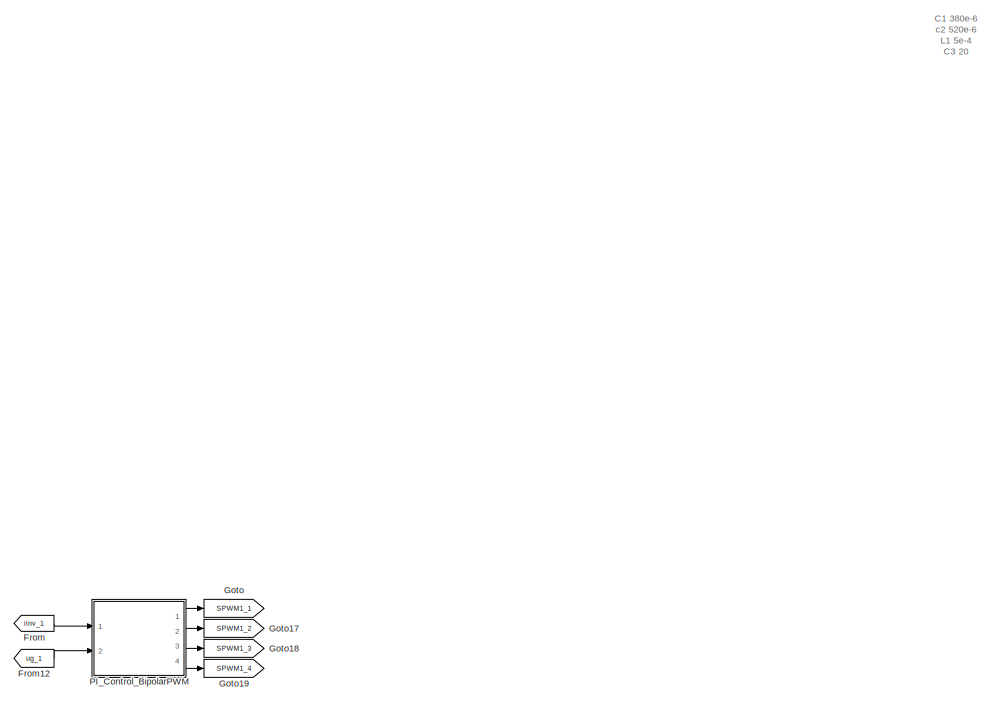
[diagram: root canvas - part 1/4, top right region]
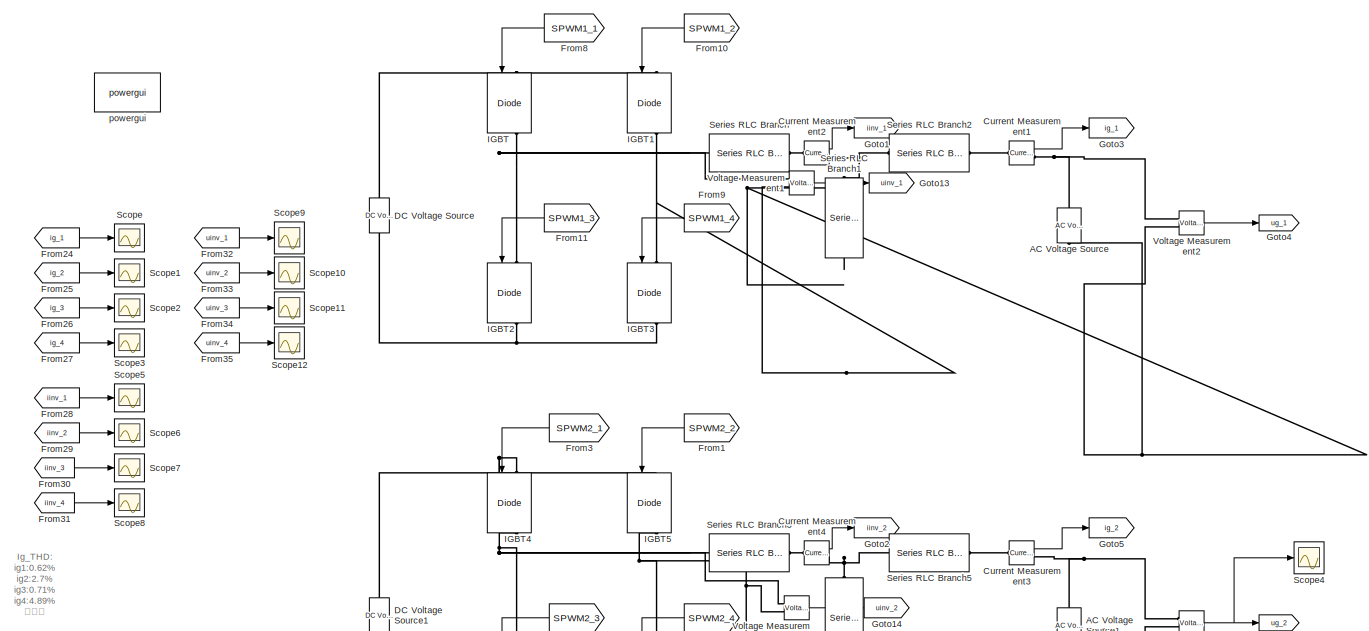
[diagram: root canvas - part 2/4, middle left region]
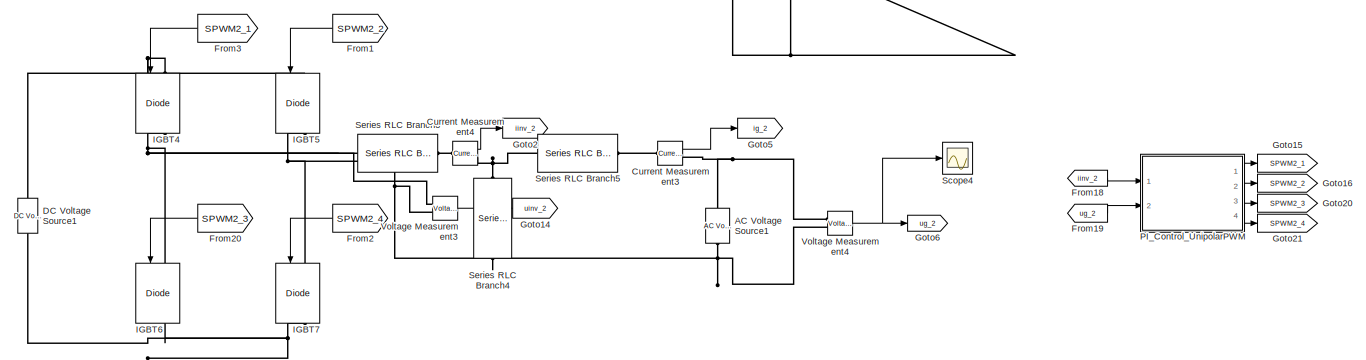
[diagram: root canvas - part 3/4, central region]
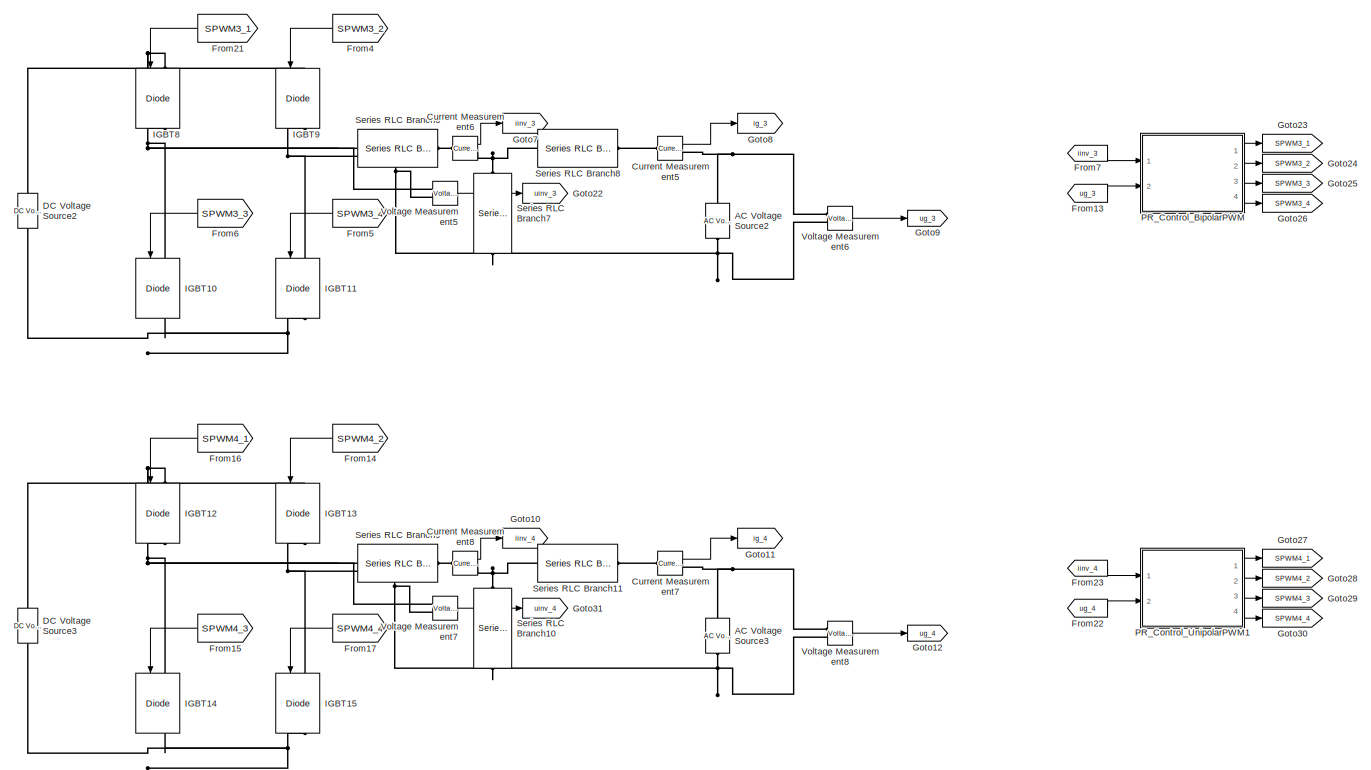
[diagram: root canvas - part 4/4, bottom center region]
MODEL slx_4f4488f0aff0
KIND model
CONFIG AbsTol = auto
CONFIG EnableMultiTasking = off
CONFIG FixedStep = 5e-7
CONFIG MaxStep = 1e-6
CONFIG MinStep = auto
CONFIG RelTol = 1e-3
CONFIG SampleTimeConstraint = Unconstrained
CONFIG SolverName = FixedStepDiscrete
CONFIG StartTime = 0.0
CONFIG StopTime = 2
BLOCK [Reference] AC Voltage Source  REF=powerlib/Electrical
Sources/AC Voltage Source
  NameLocation = right
  Ports = [0, 0, 0, 0, 0, 1, 1]
  SourceBlock = powerlib/Electrical\nSources/AC Voltage Source
  SourceProductBaseCode = PS
  SourceType = AC Voltage Source
BLOCK [Reference] AC Voltage Source1  REF=powerlib/Electrical
Sources/AC Voltage Source
  NameLocation = right
  Ports = [0, 0, 0, 0, 0, 1, 1]
  SourceBlock = powerlib/Electrical\nSources/AC Voltage Source
  SourceProductBaseCode = PS
  SourceType = AC Voltage Source
BLOCK [Reference] AC Voltage Source2  REF=powerlib/Electrical
Sources/AC Voltage Source
  NameLocation = right
  Ports = [0, 0, 0, 0, 0, 1, 1]
  SourceBlock = powerlib/Electrical\nSources/AC Voltage Source
  SourceProductBaseCode = PS
  SourceType = AC Voltage Source
BLOCK [Reference] AC Voltage Source3  REF=powerlib/Electrical
Sources/AC Voltage Source
  NameLocation = right
  Ports = [0, 0, 0, 0, 0, 1, 1]
  SourceBlock = powerlib/Electrical\nSources/AC Voltage Source
  SourceProductBaseCode = PS
  SourceType = AC Voltage Source
BLOCK [Reference] Current Measurement1  REF=powerlib/Measurements/Current Measurement
  NameLocation = top
  Ports = [0, 1, 0, 0, 0, 1, 1]
  SourceBlock = powerlib/Measurements/Current Measurement
  SourceProductBaseCode = PS
  SourceType = Current Measurement
  UserDataPersistent = on
BLOCK [Reference] Current Measurement2  REF=powerlib/Measurements/Current Measurement
  NameLocation = top
  Ports = [0, 1, 0, 0, 0, 1, 1]
  SourceBlock = powerlib/Measurements/Current Measurement
  SourceProductBaseCode = PS
  SourceType = Current Measurement
  UserDataPersistent = on
BLOCK [Reference] Current Measurement3  REF=powerlib/Measurements/Current Measurement
  NameLocation = top
  Ports = [0, 1, 0, 0, 0, 1, 1]
  SourceBlock = powerlib/Measurements/Current Measurement
  SourceProductBaseCode = PS
  SourceType = Current Measurement
  UserDataPersistent = on
BLOCK [Reference] Current Measurement4  REF=powerlib/Measurements/Current Measurement
  NameLocation = top
  Ports = [0, 1, 0, 0, 0, 1, 1]
  SourceBlock = powerlib/Measurements/Current Measurement
  SourceProductBaseCode = PS
  SourceType = Current Measurement
  UserDataPersistent = on
BLOCK [Reference] Current Measurement5  REF=powerlib/Measurements/Current Measurement
  NameLocation = top
  Ports = [0, 1, 0, 0, 0, 1, 1]
  SourceBlock = powerlib/Measurements/Current Measurement
  SourceProductBaseCode = PS
  SourceType = Current Measurement
  UserDataPersistent = on
BLOCK [Reference] Current Measurement6  REF=powerlib/Measurements/Current Measurement
  NameLocation = top
  Ports = [0, 1, 0, 0, 0, 1, 1]
  SourceBlock = powerlib/Measurements/Current Measurement
  SourceProductBaseCode = PS
  SourceType = Current Measurement
  UserDataPersistent = on
BLOCK [Reference] Current Measurement7  REF=powerlib/Measurements/Current Measurement
  NameLocation = top
  Ports = [0, 1, 0, 0, 0, 1, 1]
  SourceBlock = powerlib/Measurements/Current Measurement
  SourceProductBaseCode = PS
  SourceType = Current Measurement
  UserDataPersistent = on
BLOCK [Reference] Current Measurement8  REF=powerlib/Measurements/Current Measurement
  NameLocation = top
  Ports = [0, 1, 0, 0, 0, 1, 1]
  SourceBlock = powerlib/Measurements/Current Measurement
  SourceProductBaseCode = PS
  SourceType = Current Measurement
  UserDataPersistent = on
BLOCK [Reference] DC Voltage Source  REF=powerlib/Electrical
Sources/DC Voltage Source
  NameLocation = right
  Ports = [0, 0, 0, 0, 0, 1, 1]
  SourceBlock = powerlib/Electrical\nSources/DC Voltage Source
  SourceProductBaseCode = PS
  SourceType = DC Voltage Source
BLOCK [Reference] DC Voltage Source1  REF=powerlib/Electrical
Sources/DC Voltage Source
  NameLocation = right
  Ports = [0, 0, 0, 0, 0, 1, 1]
  SourceBlock = powerlib/Electrical\nSources/DC Voltage Source
  SourceProductBaseCode = PS
  SourceType = DC Voltage Source
BLOCK [Reference] DC Voltage Source2  REF=powerlib/Electrical
Sources/DC Voltage Source
  NameLocation = right
  Ports = [0, 0, 0, 0, 0, 1, 1]
  SourceBlock = powerlib/Electrical\nSources/DC Voltage Source
  SourceProductBaseCode = PS
  SourceType = DC Voltage Source
BLOCK [Reference] DC Voltage Source3  REF=powerlib/Electrical
Sources/DC Voltage Source
  NameLocation = right
  Ports = [0, 0, 0, 0, 0, 1, 1]
  SourceBlock = powerlib/Electrical\nSources/DC Voltage Source
  SourceProductBaseCode = PS
  SourceType = DC Voltage Source
BLOCK [From] From
  GotoTag = iinv_1
BLOCK [From] From1
  GotoTag = SPWM2_2
  NameLocation = top
BLOCK [From] From10
  GotoTag = SPWM1_2
  NameLocation = top
BLOCK [From] From11
  GotoTag = SPWM1_3
  NameLocation = top
BLOCK [From] From12
  GotoTag = ug_1
BLOCK [From] From13
  GotoTag = ug_3
BLOCK [From] From14
  GotoTag = SPWM4_2
  NameLocation = top
BLOCK [From] From15
  GotoTag = SPWM4_3
  NameLocation = top
BLOCK [From] From16
  GotoTag = SPWM4_1
  NameLocation = top
BLOCK [From] From17
  GotoTag = SPWM4_4
  NameLocation = top
BLOCK [From] From18
  GotoTag = iinv_2
BLOCK [From] From19
  GotoTag = ug_2
BLOCK [From] From2
  GotoTag = SPWM2_4
  NameLocation = top
BLOCK [From] From20
  GotoTag = SPWM2_3
  NameLocation = top
BLOCK [From] From21
  GotoTag = SPWM3_1
  NameLocation = top
BLOCK [From] From22
  GotoTag = ug_4
BLOCK [From] From23
  GotoTag = iinv_4
BLOCK [From] From24
  GotoTag = ig_1
BLOCK [From] From25
  GotoTag = ig_2
BLOCK [From] From26
  GotoTag = ig_3
BLOCK [From] From27
  GotoTag = ig_4
BLOCK [From] From28
  GotoTag = iinv_1
BLOCK [From] From29
  GotoTag = iinv_2
BLOCK [From] From3
  GotoTag = SPWM2_1
  NameLocation = top
BLOCK [From] From30
  GotoTag = iinv_3
BLOCK [From] From31
  GotoTag = iinv_4
BLOCK [From] From32
  GotoTag = uinv_1
BLOCK [From] From33
  GotoTag = uinv_2
BLOCK [From] From34
  GotoTag = uinv_3
BLOCK [From] From35
  GotoTag = uinv_4
BLOCK [From] From4
  GotoTag = SPWM3_2
  NameLocation = top
BLOCK [From] From5
  GotoTag = SPWM3_4
  NameLocation = top
BLOCK [From] From6
  GotoTag = SPWM3_3
  NameLocation = top
BLOCK [From] From7
  GotoTag = iinv_3
BLOCK [From] From8
  GotoTag = SPWM1_1
  NameLocation = top
BLOCK [From] From9
  GotoTag = SPWM1_4
  NameLocation = top
BLOCK [Goto] Goto
  GotoTag = SPWM1_1
BLOCK [Goto] Goto1
  GotoTag = iinv_1
BLOCK [Goto] Goto10
  GotoTag = iinv_4
BLOCK [Goto] Goto11
  GotoTag = ig_4
BLOCK [Goto] Goto12
  GotoTag = ug_4
BLOCK [Goto] Goto13
  GotoTag = uinv_1
BLOCK [Goto] Goto14
  GotoTag = uinv_2
BLOCK [Goto] Goto15
  GotoTag = SPWM2_1
BLOCK [Goto] Goto16
  GotoTag = SPWM2_2
BLOCK [Goto] Goto17
  GotoTag = SPWM1_2
BLOCK [Goto] Goto18
  GotoTag = SPWM1_3
BLOCK [Goto] Goto19
  GotoTag = SPWM1_4
BLOCK [Goto] Goto2
  GotoTag = iinv_2
BLOCK [Goto] Goto20
  GotoTag = SPWM2_3
BLOCK [Goto] Goto21
  GotoTag = SPWM2_4
BLOCK [Goto] Goto22
  GotoTag = uinv_3
BLOCK [Goto] Goto23
  GotoTag = SPWM3_1
BLOCK [Goto] Goto24
  GotoTag = SPWM3_2
BLOCK [Goto] Goto25
  GotoTag = SPWM3_3
BLOCK [Goto] Goto26
  GotoTag = SPWM3_4
BLOCK [Goto] Goto27
  GotoTag = SPWM4_1
BLOCK [Goto] Goto28
  GotoTag = SPWM4_2
BLOCK [Goto] Goto29
  GotoTag = SPWM4_3
BLOCK [Goto] Goto3
  GotoTag = ig_1
BLOCK [Goto] Goto30
  GotoTag = SPWM4_4
BLOCK [Goto] Goto31
  GotoTag = uinv_4
BLOCK [Goto] Goto4
  GotoTag = ug_1
BLOCK [Goto] Goto5
  GotoTag = ig_2
BLOCK [Goto] Goto6
  GotoTag = ug_2
BLOCK [Goto] Goto7
  GotoTag = iinv_3
BLOCK [Goto] Goto8
  GotoTag = ig_3
BLOCK [Goto] Goto9
  GotoTag = ug_3
BLOCK [Reference] IGBT  REF=powerlib/Power
Electronics/IGBT//Diode
  NameLocation = left
  Ports = [1, 1, 0, 0, 0, 1, 1]
  SourceBlock = powerlib/Power\nElectronics/IGBT//Diode
  SourceProductBaseCode = PS
  SourceType = IGBT/Diode
BLOCK [Reference] IGBT1  REF=powerlib/Power
Electronics/IGBT//Diode
  NameLocation = left
  Ports = [1, 1, 0, 0, 0, 1, 1]
  SourceBlock = powerlib/Power\nElectronics/IGBT//Diode
  SourceProductBaseCode = PS
  SourceType = IGBT/Diode
BLOCK [Reference] IGBT10  REF=powerlib/Power
Electronics/IGBT//Diode
  NameLocation = left
  Ports = [1, 1, 0, 0, 0, 1, 1]
  SourceBlock = powerlib/Power\nElectronics/IGBT//Diode
  SourceProductBaseCode = PS
  SourceType = IGBT/Diode
BLOCK [Reference] IGBT11  REF=powerlib/Power
Electronics/IGBT//Diode
  NameLocation = left
  Ports = [1, 1, 0, 0, 0, 1, 1]
  SourceBlock = powerlib/Power\nElectronics/IGBT//Diode
  SourceProductBaseCode = PS
  SourceType = IGBT/Diode
BLOCK [Reference] IGBT12  REF=powerlib/Power
Electronics/IGBT//Diode
  NameLocation = left
  Ports = [1, 1, 0, 0, 0, 1, 1]
  SourceBlock = powerlib/Power\nElectronics/IGBT//Diode
  SourceProductBaseCode = PS
  SourceType = IGBT/Diode
BLOCK [Reference] IGBT13  REF=powerlib/Power
Electronics/IGBT//Diode
  NameLocation = left
  Ports = [1, 1, 0, 0, 0, 1, 1]
  SourceBlock = powerlib/Power\nElectronics/IGBT//Diode
  SourceProductBaseCode = PS
  SourceType = IGBT/Diode
BLOCK [Reference] IGBT14  REF=powerlib/Power
Electronics/IGBT//Diode
  NameLocation = left
  Ports = [1, 1, 0, 0, 0, 1, 1]
  SourceBlock = powerlib/Power\nElectronics/IGBT//Diode
  SourceProductBaseCode = PS
  SourceType = IGBT/Diode
BLOCK [Reference] IGBT15  REF=powerlib/Power
Electronics/IGBT//Diode
  NameLocation = left
  Ports = [1, 1, 0, 0, 0, 1, 1]
  SourceBlock = powerlib/Power\nElectronics/IGBT//Diode
  SourceProductBaseCode = PS
  SourceType = IGBT/Diode
BLOCK [Reference] IGBT2  REF=powerlib/Power
Electronics/IGBT//Diode
  NameLocation = left
  Ports = [1, 1, 0, 0, 0, 1, 1]
  SourceBlock = powerlib/Power\nElectronics/IGBT//Diode
  SourceProductBaseCode = PS
  SourceType = IGBT/Diode
BLOCK [Reference] IGBT3  REF=powerlib/Power
Electronics/IGBT//Diode
  NameLocation = left
  Ports = [1, 1, 0, 0, 0, 1, 1]
  SourceBlock = powerlib/Power\nElectronics/IGBT//Diode
  SourceProductBaseCode = PS
  SourceType = IGBT/Diode
BLOCK [Reference] IGBT4  REF=powerlib/Power
Electronics/IGBT//Diode
  NameLocation = left
  Ports = [1, 1, 0, 0, 0, 1, 1]
  SourceBlock = powerlib/Power\nElectronics/IGBT//Diode
  SourceProductBaseCode = PS
  SourceType = IGBT/Diode
BLOCK [Reference] IGBT5  REF=powerlib/Power
Electronics/IGBT//Diode
  NameLocation = left
  Ports = [1, 1, 0, 0, 0, 1, 1]
  SourceBlock = powerlib/Power\nElectronics/IGBT//Diode
  SourceProductBaseCode = PS
  SourceType = IGBT/Diode
BLOCK [Reference] IGBT6  REF=powerlib/Power
Electronics/IGBT//Diode
  NameLocation = left
  Ports = [1, 1, 0, 0, 0, 1, 1]
  SourceBlock = powerlib/Power\nElectronics/IGBT//Diode
  SourceProductBaseCode = PS
  SourceType = IGBT/Diode
BLOCK [Reference] IGBT7  REF=powerlib/Power
Electronics/IGBT//Diode
  NameLocation = left
  Ports = [1, 1, 0, 0, 0, 1, 1]
  SourceBlock = powerlib/Power\nElectronics/IGBT//Diode
  SourceProductBaseCode = PS
  SourceType = IGBT/Diode
BLOCK [Reference] IGBT8  REF=powerlib/Power
Electronics/IGBT//Diode
  NameLocation = left
  Ports = [1, 1, 0, 0, 0, 1, 1]
  SourceBlock = powerlib/Power\nElectronics/IGBT//Diode
  SourceProductBaseCode = PS
  SourceType = IGBT/Diode
BLOCK [Reference] IGBT9  REF=powerlib/Power
Electronics/IGBT//Diode
  NameLocation = left
  Ports = [1, 1, 0, 0, 0, 1, 1]
  SourceBlock = powerlib/Power\nElectronics/IGBT//Diode
  SourceProductBaseCode = PS
  SourceType = IGBT/Diode
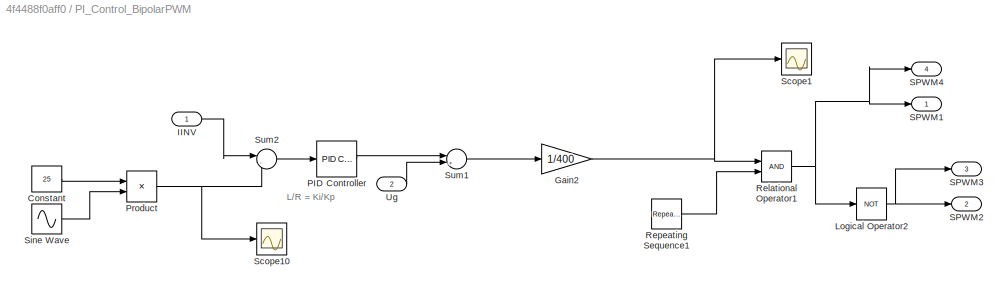
BLOCK [SubSystem] PI_Control_BipolarPWM
  Ports = [2, 4]
  RequestExecContextInheritance = off
BLOCK [Constant] PI_Control_BipolarPWM/Constant
  Value = 25
BLOCK [Gain] PI_Control_BipolarPWM/Gain2
  Gain = 1/400
BLOCK [Inport] PI_Control_BipolarPWM/IINV
BLOCK [Logic] PI_Control_BipolarPWM/Logical Operator2
  AllPortsSameDT = off
  Operator = NOT
  OutDataTypeStr = boolean
  Ports = [1, 1]
BLOCK [Reference] PI_Control_BipolarPWM/PID Controller  REF=pid_lib/PID Controller
  Ports = [1, 1]
  SourceBlock = pid_lib/PID Controller
  SourceProductBaseCode = SL
  SourceType = PID 1dof
BLOCK [Product] PI_Control_BipolarPWM/Product
  Ports = [2, 1]
BLOCK [RelationalOperator] PI_Control_BipolarPWM/Relational Operator1
  InputSameDT = off
  OutDataTypeStr = boolean
  Ports = [2, 1]
  RndMeth = Simplest
BLOCK [Reference] PI_Control_BipolarPWM/Repeating Sequence1  REF=simulink/Sources/Repeating
Sequence
  Ports = [0, 1]
  SourceBlock = simulink/Sources/Repeating\nSequence
  SourceProductBaseCode = SL
  SourceType = Repeating table
BLOCK [Outport] PI_Control_BipolarPWM/SPWM1
BLOCK [Outport] PI_Control_BipolarPWM/SPWM2
  Port = 2
BLOCK [Outport] PI_Control_BipolarPWM/SPWM3
  Port = 3
BLOCK [Outport] PI_Control_BipolarPWM/SPWM4
  Port = 4
BLOCK [Scope] PI_Control_BipolarPWM/Scope1
  Floating = off
  NumInputPorts = 1
  Ports = [1]
  ScopeSpecificationString = Simulink.scopes.TimeScopeBlockCfg('CurrentConfiguration', extmgr.ConfigurationSet(extmgr.Configuration('Core','General UI',true),extmgr.Configuration('Core','Source UI',true),extmgr.Configuration('Sources','WiredSimulink',true,'DataLoggingVariableName','ScopeData5'),extmgr.Configuration('Visuals','Time Domain',true,'SerializedDisplays',{struct('MinYLimReal','-0.05044','MaxYLimReal','0.134','YLabel...<+1433ch>
BLOCK [Scope] PI_Control_BipolarPWM/Scope10
  Floating = off
  NumInputPorts = 1
  Ports = [1]
  ScopeSpecificationString = Simulink.scopes.TimeScopeBlockCfg('CurrentConfiguration', extmgr.ConfigurationSet(extmgr.Configuration('Core','General UI',true),extmgr.Configuration('Core','Source UI',true),extmgr.Configuration('Sources','WiredSimulink',true,'DataLoggingVariableName','ScopeData6'),extmgr.Configuration('Visuals','Time Domain',true,'SerializedDisplays',{struct('MinYLimReal','-5.46531','MaxYLimReal','6.25','YLabelR...<+1448ch>
BLOCK [Sin] PI_Control_BipolarPWM/Sine Wave
  Frequency = 100*pi
  Ports = [0, 1]
BLOCK [Sum] PI_Control_BipolarPWM/Sum1
  Inputs = |++
  Ports = [2, 1]
BLOCK [Sum] PI_Control_BipolarPWM/Sum2
  Inputs = |-+
  Ports = [2, 1]
BLOCK [Inport] PI_Control_BipolarPWM/Ug
  Port = 2
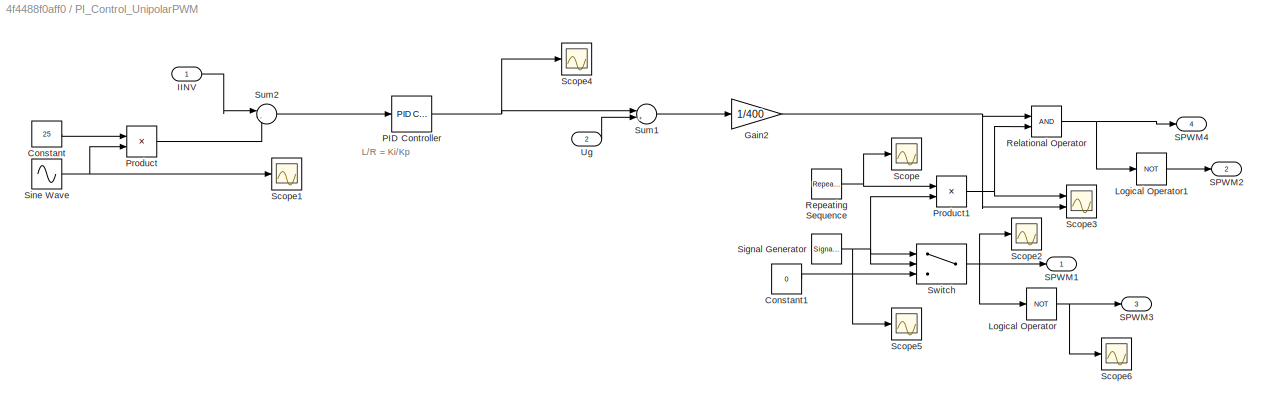
BLOCK [SubSystem] PI_Control_UnipolarPWM
  Ports = [2, 4]
  RequestExecContextInheritance = off
BLOCK [Constant] PI_Control_UnipolarPWM/Constant
  Value = 25
BLOCK [Constant] PI_Control_UnipolarPWM/Constant1
  Value = 0
BLOCK [Gain] PI_Control_UnipolarPWM/Gain2
  Gain = 1/400
BLOCK [Inport] PI_Control_UnipolarPWM/IINV
BLOCK [Logic] PI_Control_UnipolarPWM/Logical Operator
  AllPortsSameDT = off
  Operator = NOT
  OutDataTypeStr = boolean
  Ports = [1, 1]
BLOCK [Logic] PI_Control_UnipolarPWM/Logical Operator1
  AllPortsSameDT = off
  Operator = NOT
  OutDataTypeStr = boolean
  Ports = [1, 1]
BLOCK [Reference] PI_Control_UnipolarPWM/PID Controller  REF=pid_lib/PID Controller
  Ports = [1, 1]
  SourceBlock = pid_lib/PID Controller
  SourceProductBaseCode = SL
  SourceType = PID 1dof
BLOCK [Product] PI_Control_UnipolarPWM/Product
  Ports = [2, 1]
BLOCK [Product] PI_Control_UnipolarPWM/Product1
  Ports = [2, 1]
BLOCK [RelationalOperator] PI_Control_UnipolarPWM/Relational Operator
  InputSameDT = off
  OutDataTypeStr = boolean
  Ports = [2, 1]
  RndMeth = Simplest
BLOCK [Reference] PI_Control_UnipolarPWM/Repeating Sequence  REF=simulink/Sources/Repeating
Sequence
  Ports = [0, 1]
  SourceBlock = simulink/Sources/Repeating\nSequence
  SourceProductBaseCode = SL
  SourceType = Repeating table
BLOCK [Outport] PI_Control_UnipolarPWM/SPWM1
BLOCK [Outport] PI_Control_UnipolarPWM/SPWM2
  Port = 2
BLOCK [Outport] PI_Control_UnipolarPWM/SPWM3
  Port = 3
BLOCK [Outport] PI_Control_UnipolarPWM/SPWM4
  Port = 4
BLOCK [Scope] PI_Control_UnipolarPWM/Scope
  Floating = off
  NumInputPorts = 1
  Ports = [1]
  ScopeSpecificationString = Simulink.scopes.TimeScopeBlockCfg('CurrentConfiguration', extmgr.ConfigurationSet(extmgr.Configuration('Core','General UI',true),extmgr.Configuration('Core','Source UI',true),extmgr.Configuration('Sources','WiredSimulink',true,'DataLoggingVariableName','ScopeData1'),extmgr.Configuration('Visuals','Time Domain',true,'SerializedDisplays',{struct('MinYLimReal','-0.125','MaxYLimReal','1.125','YLabelRe...<+1409ch>
BLOCK [Scope] PI_Control_UnipolarPWM/Scope1
  Floating = off
  NumInputPorts = 1
  Ports = [1]
  ScopeSpecificationString = Simulink.scopes.TimeScopeBlockCfg('CurrentConfiguration', extmgr.ConfigurationSet(extmgr.Configuration('Core','General UI',true),extmgr.Configuration('Core','Source UI',true),extmgr.Configuration('Sources','WiredSimulink',true,'DataLoggingVariableName','ScopeData7'),extmgr.Configuration('Visuals','Time Domain',true,'SerializedDisplays',{struct('MinYLimReal','-1.09034','MaxYLimReal','1.16481','YLab...<+1387ch>
BLOCK [Scope] PI_Control_UnipolarPWM/Scope2
  Floating = off
  NumInputPorts = 1
  Ports = [1]
  ScopeSpecificationString = Simulink.scopes.TimeScopeBlockCfg('CurrentConfiguration', extmgr.ConfigurationSet(extmgr.Configuration('Core','General UI',true),extmgr.Configuration('Core','Source UI',true),extmgr.Configuration('Sources','WiredSimulink',true,'DataLoggingVariableName','ScopeData2'),extmgr.Configuration('Visuals','Time Domain',true,'SerializedDisplays',{struct('MinYLimReal','-1.00448','MaxYLimReal','1.07541','YLab...<+1413ch>
BLOCK [Scope] PI_Control_UnipolarPWM/Scope3
  Floating = off
  NumInputPorts = 2
  Ports = [2]
  ScopeSpecificationString = Simulink.scopes.TimeScopeBlockCfg('CurrentConfiguration', extmgr.ConfigurationSet(extmgr.Configuration('Core','General UI',true),extmgr.Configuration('Core','Source UI',true),extmgr.Configuration('Sources','WiredSimulink',true,'DataLoggingVariableName','ScopeData3'),extmgr.Configuration('Visuals','Time Domain',true,'SerializedDisplays',{struct('MinYLimReal','-1.07126','MaxYLimReal','1.18144','YLab...<+1454ch>
BLOCK [Scope] PI_Control_UnipolarPWM/Scope4
  Floating = off
  NumInputPorts = 1
  Ports = [1]
  ScopeSpecificationString = Simulink.scopes.TimeScopeBlockCfg('CurrentConfiguration', extmgr.ConfigurationSet(extmgr.Configuration('Core','General UI',true),extmgr.Configuration('Core','Source UI',true),extmgr.Configuration('Sources','WiredSimulink',true,'DataLoggingVariableName','ScopeData9'),extmgr.Configuration('Visuals','Time Domain',true,'SerializedDisplays',{struct('MinYLimReal','-85.03787','MaxYLimReal','94.18423','YL...<+1398ch>
BLOCK [Scope] PI_Control_UnipolarPWM/Scope5
  Floating = off
  NumInputPorts = 1
  Ports = [1]
  ScopeSpecificationString = Simulink.scopes.TimeScopeBlockCfg('CurrentConfiguration', extmgr.ConfigurationSet(extmgr.Configuration('Core','General UI',true),extmgr.Configuration('Core','Source UI',true),extmgr.Configuration('Sources','WiredSimulink',true,'DataLoggingVariableName','ScopeData7'),extmgr.Configuration('Visuals','Time Domain',true,'SerializedDisplays',{struct('MinYLimReal','-1.0819','MaxYLimReal','1.25','YLabelRe...<+1415ch>
BLOCK [Scope] PI_Control_UnipolarPWM/Scope6
  Floating = off
  NumInputPorts = 1
  Ports = [1]
  ScopeSpecificationString = Simulink.scopes.TimeScopeBlockCfg('CurrentConfiguration', extmgr.ConfigurationSet(extmgr.Configuration('Core','General UI',true),extmgr.Configuration('Core','Source UI',true),extmgr.Configuration('Sources','WiredSimulink',true,'DataLoggingVariableName','ScopeData1'),extmgr.Configuration('Visuals','Time Domain',true,'SerializedDisplays',{struct('MinYLimReal','-1.00448','MaxYLimReal','1.07541','YLab...<+1423ch>
BLOCK [SignalGenerator] PI_Control_UnipolarPWM/Signal Generator
  Amplitude = -1
  Frequency = 50*2*pi
  Ports = [0, 1]
  Units = rad/sec
  WaveForm = square
BLOCK [Sin] PI_Control_UnipolarPWM/Sine Wave
  Frequency = 100*pi
  Ports = [0, 1]
BLOCK [Sum] PI_Control_UnipolarPWM/Sum1
  Inputs = |++
  Ports = [2, 1]
BLOCK [Sum] PI_Control_UnipolarPWM/Sum2
  Inputs = |-+
  Ports = [2, 1]
BLOCK [Switch] PI_Control_UnipolarPWM/Switch
  InputSameDT = off
  SaturateOnIntegerOverflow = off
BLOCK [Inport] PI_Control_UnipolarPWM/Ug
  Port = 2
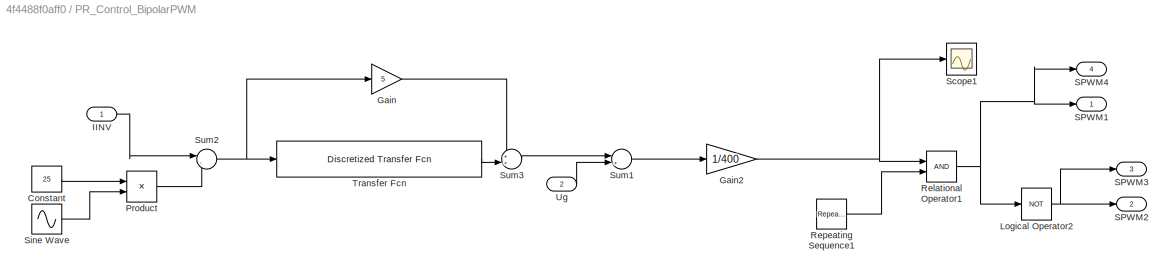
BLOCK [SubSystem] PR_Control_BipolarPWM
  Ports = [2, 4]
  RequestExecContextInheritance = off
BLOCK [Constant] PR_Control_BipolarPWM/Constant
  Value = 25
BLOCK [Gain] PR_Control_BipolarPWM/Gain
  Gain = 5
BLOCK [Gain] PR_Control_BipolarPWM/Gain2
  Gain = 1/400
BLOCK [Inport] PR_Control_BipolarPWM/IINV
BLOCK [Logic] PR_Control_BipolarPWM/Logical Operator2
  AllPortsSameDT = off
  Operator = NOT
  OutDataTypeStr = boolean
  Ports = [1, 1]
BLOCK [Product] PR_Control_BipolarPWM/Product
  Ports = [2, 1]
BLOCK [RelationalOperator] PR_Control_BipolarPWM/Relational Operator1
  InputSameDT = off
  OutDataTypeStr = boolean
  Ports = [2, 1]
  RndMeth = Simplest
BLOCK [Reference] PR_Control_BipolarPWM/Repeating Sequence1  REF=simulink/Sources/Repeating
Sequence
  Ports = [0, 1]
  SourceBlock = simulink/Sources/Repeating\nSequence
  SourceProductBaseCode = SL
  SourceType = Repeating table
BLOCK [Outport] PR_Control_BipolarPWM/SPWM1
BLOCK [Outport] PR_Control_BipolarPWM/SPWM2
  Port = 2
BLOCK [Outport] PR_Control_BipolarPWM/SPWM3
  Port = 3
BLOCK [Outport] PR_Control_BipolarPWM/SPWM4
  Port = 4
BLOCK [Scope] PR_Control_BipolarPWM/Scope1
  Floating = off
  NumInputPorts = 1
  Ports = [1]
  ScopeSpecificationString = Simulink.scopes.TimeScopeBlockCfg('CurrentConfiguration', extmgr.ConfigurationSet(extmgr.Configuration('Core','General UI',true),extmgr.Configuration('Core','Source UI',true),extmgr.Configuration('Sources','WiredSimulink',true,'DataLoggingVariableName','ScopeData1'),extmgr.Configuration('Visuals','Time Domain',true),extmgr.Configuration('Tools','Plot Navigation',true),extmgr.Configuration('Tools',...<+40ch>
BLOCK [Sin] PR_Control_BipolarPWM/Sine Wave
  Frequency = 100*pi
  Ports = [0, 1]
BLOCK [Sum] PR_Control_BipolarPWM/Sum1
  Inputs = |++
  Ports = [2, 1]
BLOCK [Sum] PR_Control_BipolarPWM/Sum2
  Inputs = |-+
  Ports = [2, 1]
BLOCK [Sum] PR_Control_BipolarPWM/Sum3
  Inputs = ++|
  Ports = [2, 1]
BLOCK [Reference] PR_Control_BipolarPWM/Transfer Fcn  REF=discretizing/Discretized  (lib defined in mdl_5048aa1cd587)
Transfer Fcn
  Ports = [1, 1]
  SourceBlock = discretizing/Discretized\nTransfer Fcn
  SourceProductBaseCode = SL
  SourceType = DiscretizedTransferFcn
BLOCK [Inport] PR_Control_BipolarPWM/Ug
  Port = 2
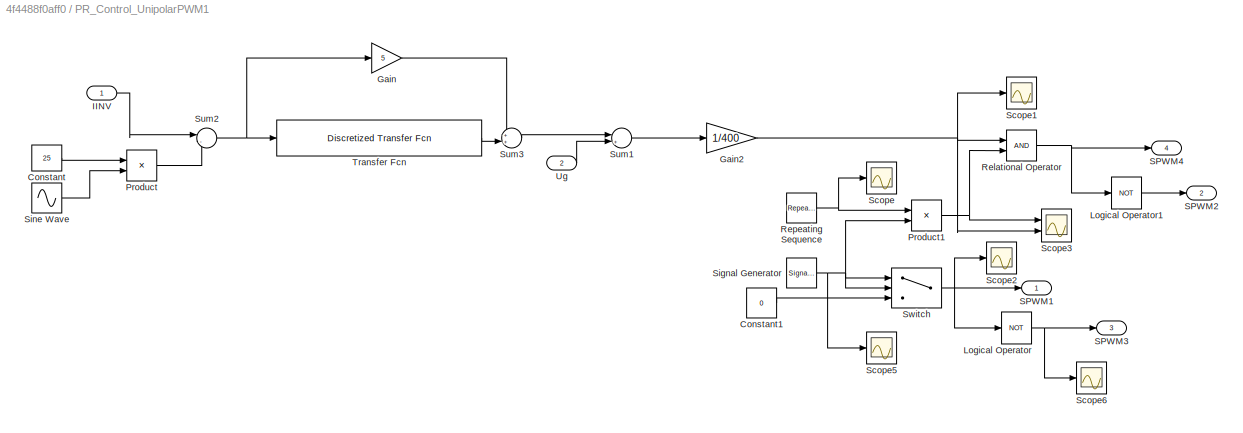
BLOCK [SubSystem] PR_Control_UnipolarPWM1
  Ports = [2, 4]
  RequestExecContextInheritance = off
BLOCK [Constant] PR_Control_UnipolarPWM1/Constant
  Value = 25
BLOCK [Constant] PR_Control_UnipolarPWM1/Constant1
  Value = 0
BLOCK [Gain] PR_Control_UnipolarPWM1/Gain
  Gain = 5
BLOCK [Gain] PR_Control_UnipolarPWM1/Gain2
  Gain = 1/400
BLOCK [Inport] PR_Control_UnipolarPWM1/IINV
BLOCK [Logic] PR_Control_UnipolarPWM1/Logical Operator
  AllPortsSameDT = off
  Operator = NOT
  OutDataTypeStr = boolean
  Ports = [1, 1]
BLOCK [Logic] PR_Control_UnipolarPWM1/Logical Operator1
  AllPortsSameDT = off
  Operator = NOT
  OutDataTypeStr = boolean
  Ports = [1, 1]
BLOCK [Product] PR_Control_UnipolarPWM1/Product
  Ports = [2, 1]
BLOCK [Product] PR_Control_UnipolarPWM1/Product1
  Ports = [2, 1]
BLOCK [RelationalOperator] PR_Control_UnipolarPWM1/Relational Operator
  InputSameDT = off
  OutDataTypeStr = boolean
  Ports = [2, 1]
  RndMeth = Simplest
BLOCK [Reference] PR_Control_UnipolarPWM1/Repeating Sequence  REF=simulink/Sources/Repeating
Sequence
  Ports = [0, 1]
  SourceBlock = simulink/Sources/Repeating\nSequence
  SourceProductBaseCode = SL
  SourceType = Repeating table
BLOCK [Outport] PR_Control_UnipolarPWM1/SPWM1
BLOCK [Outport] PR_Control_UnipolarPWM1/SPWM2
  Port = 2
BLOCK [Outport] PR_Control_UnipolarPWM1/SPWM3
  Port = 3
BLOCK [Outport] PR_Control_UnipolarPWM1/SPWM4
  Port = 4
BLOCK [Scope] PR_Control_UnipolarPWM1/Scope
  Floating = off
  NumInputPorts = 1
  Ports = [1]
  ScopeSpecificationString = Simulink.scopes.TimeScopeBlockCfg('CurrentConfiguration', extmgr.ConfigurationSet(extmgr.Configuration('Core','General UI',true),extmgr.Configuration('Core','Source UI',true),extmgr.Configuration('Sources','WiredSimulink',true,'DataLoggingVariableName','ScopeData2'),extmgr.Configuration('Visuals','Time Domain',true,'SerializedDisplays',{struct('MinYLimReal','-0.125','MaxYLimReal','1.125','YLabelRe...<+1409ch>
BLOCK [Scope] PR_Control_UnipolarPWM1/Scope1
  Floating = off
  NumInputPorts = 1
  Ports = [1]
  ScopeSpecificationString = Simulink.scopes.TimeScopeBlockCfg('CurrentConfiguration', extmgr.ConfigurationSet(extmgr.Configuration('Core','General UI',true),extmgr.Configuration('Core','Source UI',true),extmgr.Configuration('Sources','WiredSimulink',true,'DataLoggingVariableName','ScopeData10'),extmgr.Configuration('Visuals','Time Domain',true,'SerializedDisplays',{struct('MinYLimReal','-0.85442','MaxYLimReal','1.06869','YLa...<+1384ch>
BLOCK [Scope] PR_Control_UnipolarPWM1/Scope2
  Floating = off
  NumInputPorts = 1
  Ports = [1]
  ScopeSpecificationString = Simulink.scopes.TimeScopeBlockCfg('CurrentConfiguration', extmgr.ConfigurationSet(extmgr.Configuration('Core','General UI',true),extmgr.Configuration('Core','Source UI',true),extmgr.Configuration('Sources','WiredSimulink',true,'DataLoggingVariableName','ScopeData3'),extmgr.Configuration('Visuals','Time Domain',true,'SerializedDisplays',{struct('MinYLimReal','-1.00448','MaxYLimReal','1.07541','YLab...<+1413ch>
BLOCK [Scope] PR_Control_UnipolarPWM1/Scope3
  Floating = off
  NumInputPorts = 2
  Ports = [2]
  ScopeSpecificationString = Simulink.scopes.TimeScopeBlockCfg('CurrentConfiguration', extmgr.ConfigurationSet(extmgr.Configuration('Core','General UI',true),extmgr.Configuration('Core','Source UI',true),extmgr.Configuration('Sources','WiredSimulink',true,'DataLoggingVariableName','ScopeData4'),extmgr.Configuration('Visuals','Time Domain',true,'SerializedDisplays',{struct('MinYLimReal','-1.07126','MaxYLimReal','1.18144','YLab...<+1454ch>
BLOCK [Scope] PR_Control_UnipolarPWM1/Scope5
  Floating = off
  NumInputPorts = 1
  Ports = [1]
  ScopeSpecificationString = Simulink.scopes.TimeScopeBlockCfg('CurrentConfiguration', extmgr.ConfigurationSet(extmgr.Configuration('Core','General UI',true),extmgr.Configuration('Core','Source UI',true),extmgr.Configuration('Sources','WiredSimulink',true,'DataLoggingVariableName','ScopeData5'),extmgr.Configuration('Visuals','Time Domain',true,'SerializedDisplays',{struct('MinYLimReal','-1.0819','MaxYLimReal','1.25','YLabelRe...<+1415ch>
BLOCK [Scope] PR_Control_UnipolarPWM1/Scope6
  Floating = off
  NumInputPorts = 1
  Ports = [1]
  ScopeSpecificationString = Simulink.scopes.TimeScopeBlockCfg('CurrentConfiguration', extmgr.ConfigurationSet(extmgr.Configuration('Core','General UI',true),extmgr.Configuration('Core','Source UI',true),extmgr.Configuration('Sources','WiredSimulink',true,'DataLoggingVariableName','ScopeData6'),extmgr.Configuration('Visuals','Time Domain',true,'SerializedDisplays',{struct('MinYLimReal','-1.00448','MaxYLimReal','1.07541','YLab...<+1407ch>
BLOCK [SignalGenerator] PR_Control_UnipolarPWM1/Signal Generator
  Amplitude = -1
  Frequency = 50*2*pi
  Ports = [0, 1]
  Units = rad/sec
  WaveForm = square
BLOCK [Sin] PR_Control_UnipolarPWM1/Sine Wave
  Frequency = 100*pi
  Ports = [0, 1]
BLOCK [Sum] PR_Control_UnipolarPWM1/Sum1
  Inputs = |++
  Ports = [2, 1]
BLOCK [Sum] PR_Control_UnipolarPWM1/Sum2
  Inputs = |-+
  Ports = [2, 1]
BLOCK [Sum] PR_Control_UnipolarPWM1/Sum3
  Inputs = ++|
  Ports = [2, 1]
BLOCK [Switch] PR_Control_UnipolarPWM1/Switch
  InputSameDT = off
  SaturateOnIntegerOverflow = off
BLOCK [Reference] PR_Control_UnipolarPWM1/Transfer Fcn  REF=discretizing/Discretized  (lib defined in mdl_5048aa1cd587)
Transfer Fcn
  Ports = [1, 1]
  SourceBlock = discretizing/Discretized\nTransfer Fcn
  SourceProductBaseCode = SL
  SourceType = DiscretizedTransferFcn
BLOCK [Inport] PR_Control_UnipolarPWM1/Ug
  Port = 2
BLOCK [Scope] Scope
  Floating = off
  NumInputPorts = 1
  Ports = [1]
  ScopeSpecificationString = Simulink.scopes.TimeScopeBlockCfg('CurrentConfiguration', extmgr.ConfigurationSet(extmgr.Configuration('Core','General UI',true),extmgr.Configuration('Core','Source UI',true),extmgr.Configuration('Sources','WiredSimulink',true,'DataLoggingVariableName','ig1','DataLogging',true),extmgr.Configuration('Visuals','Time Domain',true,'SerializedDisplays',{struct('MinYLimReal','-27.74729','MaxYLimReal','3...<+1416ch>
BLOCK [Scope] Scope1
  Floating = off
  NumInputPorts = 1
  Ports = [1]
  ScopeSpecificationString = Simulink.scopes.TimeScopeBlockCfg('CurrentConfiguration', extmgr.ConfigurationSet(extmgr.Configuration('Core','General UI',true),extmgr.Configuration('Core','Source UI',true),extmgr.Configuration('Sources','WiredSimulink',true,'DataLoggingVariableName','Ig2','DataLogging',true),extmgr.Configuration('Visuals','Time Domain',true,'SerializedDisplays',{struct('MinYLimReal','-28.53683','MaxYLimReal','3...<+1441ch>
BLOCK [Scope] Scope10
  Floating = off
  NumInputPorts = 1
  Ports = [1]
  ScopeSpecificationString = Simulink.scopes.TimeScopeBlockCfg('CurrentConfiguration', extmgr.ConfigurationSet(extmgr.Configuration('Core','General UI',true),extmgr.Configuration('Core','Source UI',true),extmgr.Configuration('Sources','WiredSimulink',true,'DataLoggingVariableName','uinv2','DataLogging',true),extmgr.Configuration('Visuals','Time Domain',true,'SerializedDisplays',{struct('MinYLimReal','-500.03707','MaxYLimReal'...<+1407ch>
BLOCK [Scope] Scope11
  Floating = off
  NumInputPorts = 1
  Ports = [1]
  ScopeSpecificationString = Simulink.scopes.TimeScopeBlockCfg('CurrentConfiguration', extmgr.ConfigurationSet(extmgr.Configuration('Core','General UI',true),extmgr.Configuration('Core','Source UI',true),extmgr.Configuration('Sources','WiredSimulink',true,'DataLoggingVariableName','uinv3','DataLogging',true),extmgr.Configuration('Visuals','Time Domain',true,'SerializedDisplays',{struct('MinYLimReal','-500.07134','MaxYLimReal'...<+1407ch>
BLOCK [Scope] Scope12
  Floating = off
  NumInputPorts = 1
  Ports = [1]
  ScopeSpecificationString = Simulink.scopes.TimeScopeBlockCfg('CurrentConfiguration', extmgr.ConfigurationSet(extmgr.Configuration('Core','General UI',true),extmgr.Configuration('Core','Source UI',true),extmgr.Configuration('Sources','WiredSimulink',true,'DataLoggingVariableName','uinv4','DataLogging',true),extmgr.Configuration('Visuals','Time Domain',true,'SerializedDisplays',{struct('MinYLimReal','-500.00665','MaxYLimReal'...<+1407ch>
BLOCK [Scope] Scope2
  Floating = off
  NumInputPorts = 1
  Ports = [1]
  ScopeSpecificationString = Simulink.scopes.TimeScopeBlockCfg('CurrentConfiguration', extmgr.ConfigurationSet(extmgr.Configuration('Core','General UI',true),extmgr.Configuration('Core','Source UI',true),extmgr.Configuration('Sources','WiredSimulink',true,'DataLoggingVariableName','Ig3','DataLogging',true),extmgr.Configuration('Visuals','Time Domain',true,'SerializedDisplays',{struct('MinYLimReal','-29.75507','MaxYLimReal','3...<+1416ch>
BLOCK [Scope] Scope3
  Floating = off
  NumInputPorts = 1
  Ports = [1]
  ScopeSpecificationString = Simulink.scopes.TimeScopeBlockCfg('CurrentConfiguration', extmgr.ConfigurationSet(extmgr.Configuration('Core','General UI',true),extmgr.Configuration('Core','Source UI',true),extmgr.Configuration('Sources','WiredSimulink',true,'DataLoggingVariableName','Ig4','DataLogging',true),extmgr.Configuration('Visuals','Time Domain',true,'SerializedDisplays',{struct('MinYLimReal','-32.00101','MaxYLimReal','3...<+1397ch>
BLOCK [Scope] Scope4
  Floating = off
  NumInputPorts = 1
  Ports = [1]
  ScopeSpecificationString = Simulink.scopes.TimeScopeBlockCfg('CurrentConfiguration', extmgr.ConfigurationSet(extmgr.Configuration('Core','General UI',true),extmgr.Configuration('Core','Source UI',true),extmgr.Configuration('Sources','WiredSimulink',true,'DataLoggingVariableName','ScopeData8'),extmgr.Configuration('Visuals','Time Domain',true,'SerializedDisplays',{struct('MinYLimReal','-347.14405','MaxYLimReal','388.75','YLa...<+1400ch>
BLOCK [Scope] Scope5
  Floating = off
  NumInputPorts = 1
  Ports = [1]
  ScopeSpecificationString = Simulink.scopes.TimeScopeBlockCfg('CurrentConfiguration', extmgr.ConfigurationSet(extmgr.Configuration('Core','General UI',true),extmgr.Configuration('Core','Source UI',true),extmgr.Configuration('Sources','WiredSimulink',true,'DataLoggingVariableName','iinv1','DataLogging',true),extmgr.Configuration('Visuals','Time Domain',true,'SerializedDisplays',{struct('MinYLimReal','-27.90755','MaxYLimReal',...<+1451ch>
BLOCK [Scope] Scope6
  Floating = off
  NumInputPorts = 1
  Ports = [1]
  ScopeSpecificationString = Simulink.scopes.TimeScopeBlockCfg('CurrentConfiguration', extmgr.ConfigurationSet(extmgr.Configuration('Core','General UI',true),extmgr.Configuration('Core','Source UI',true),extmgr.Configuration('Sources','WiredSimulink',true,'DataLoggingVariableName','iinv2','DataLogging',true),extmgr.Configuration('Visuals','Time Domain',true,'SerializedDisplays',{struct('MinYLimReal','-29.36788','MaxYLimReal',...<+1418ch>
BLOCK [Scope] Scope7
  Floating = off
  NumInputPorts = 1
  Ports = [1]
  ScopeSpecificationString = Simulink.scopes.TimeScopeBlockCfg('CurrentConfiguration', extmgr.ConfigurationSet(extmgr.Configuration('Core','General UI',true),extmgr.Configuration('Core','Source UI',true),extmgr.Configuration('Sources','WiredSimulink',true,'DataLoggingVariableName','iinv3','DataLogging',true),extmgr.Configuration('Visuals','Time Domain',true,'SerializedDisplays',{struct('MinYLimReal','-31.11851','MaxYLimReal',...<+1418ch>
BLOCK [Scope] Scope8
  Floating = off
  NumInputPorts = 1
  Ports = [1]
  ScopeSpecificationString = Simulink.scopes.TimeScopeBlockCfg('CurrentConfiguration', extmgr.ConfigurationSet(extmgr.Configuration('Core','General UI',true),extmgr.Configuration('Core','Source UI',true),extmgr.Configuration('Sources','WiredSimulink',true,'DataLoggingVariableName','iinv4','DataLogging',true),extmgr.Configuration('Visuals','Time Domain',true,'SerializedDisplays',{struct('MinYLimReal','-29.36788','MaxYLimReal',...<+1418ch>
BLOCK [Scope] Scope9
  Floating = off
  NumInputPorts = 1
  Ports = [1]
  ScopeSpecificationString = Simulink.scopes.TimeScopeBlockCfg('CurrentConfiguration', extmgr.ConfigurationSet(extmgr.Configuration('Core','General UI',true),extmgr.Configuration('Core','Source UI',true),extmgr.Configuration('Sources','WiredSimulink',true,'DataLoggingVariableName','uinv1','DataLogging',true),extmgr.Configuration('Visuals','Time Domain',true,'SerializedDisplays',{struct('MinYLimReal','-500.06744','MaxYLimReal'...<+1407ch>
BLOCK [Reference] Series RLC Branch  REF=powerlib/Elements/Series RLC Branch
  Ports = [0, 0, 0, 0, 0, 1, 1]
  SourceBlock = powerlib/Elements/Series RLC Branch
  SourceProductBaseCode = PS
  SourceType = Series RLC Branch
BLOCK [Reference] Series RLC Branch1  REF=powerlib/Elements/Series RLC Branch
  NameLocation = left
  Ports = [0, 0, 0, 0, 0, 1, 1]
  SourceBlock = powerlib/Elements/Series RLC Branch
  SourceProductBaseCode = PS
  SourceType = Series RLC Branch
BLOCK [Reference] Series RLC Branch10  REF=powerlib/Elements/Series RLC Branch
  NameLocation = left
  Ports = [0, 0, 0, 0, 0, 1, 1]
  SourceBlock = powerlib/Elements/Series RLC Branch
  SourceProductBaseCode = PS
  SourceType = Series RLC Branch
BLOCK [Reference] Series RLC Branch11  REF=powerlib/Elements/Series RLC Branch
  Ports = [0, 0, 0, 0, 0, 1, 1]
  SourceBlock = powerlib/Elements/Series RLC Branch
  SourceProductBaseCode = PS
  SourceType = Series RLC Branch
BLOCK [Reference] Series RLC Branch2  REF=powerlib/Elements/Series RLC Branch
  Ports = [0, 0, 0, 0, 0, 1, 1]
  SourceBlock = powerlib/Elements/Series RLC Branch
  SourceProductBaseCode = PS
  SourceType = Series RLC Branch
BLOCK [Reference] Series RLC Branch3  REF=powerlib/Elements/Series RLC Branch
  Ports = [0, 0, 0, 0, 0, 1, 1]
  SourceBlock = powerlib/Elements/Series RLC Branch
  SourceProductBaseCode = PS
  SourceType = Series RLC Branch
BLOCK [Reference] Series RLC Branch4  REF=powerlib/Elements/Series RLC Branch
  NameLocation = left
  Ports = [0, 0, 0, 0, 0, 1, 1]
  SourceBlock = powerlib/Elements/Series RLC Branch
  SourceProductBaseCode = PS
  SourceType = Series RLC Branch
BLOCK [Reference] Series RLC Branch5  REF=powerlib/Elements/Series RLC Branch
  Ports = [0, 0, 0, 0, 0, 1, 1]
  SourceBlock = powerlib/Elements/Series RLC Branch
  SourceProductBaseCode = PS
  SourceType = Series RLC Branch
BLOCK [Reference] Series RLC Branch6  REF=powerlib/Elements/Series RLC Branch
  Ports = [0, 0, 0, 0, 0, 1, 1]
  SourceBlock = powerlib/Elements/Series RLC Branch
  SourceProductBaseCode = PS
  SourceType = Series RLC Branch
BLOCK [Reference] Series RLC Branch7  REF=powerlib/Elements/Series RLC Branch
  NameLocation = left
  Ports = [0, 0, 0, 0, 0, 1, 1]
  SourceBlock = powerlib/Elements/Series RLC Branch
  SourceProductBaseCode = PS
  SourceType = Series RLC Branch
BLOCK [Reference] Series RLC Branch8  REF=powerlib/Elements/Series RLC Branch
  Ports = [0, 0, 0, 0, 0, 1, 1]
  SourceBlock = powerlib/Elements/Series RLC Branch
  SourceProductBaseCode = PS
  SourceType = Series RLC Branch
BLOCK [Reference] Series RLC Branch9  REF=powerlib/Elements/Series RLC Branch
  Ports = [0, 0, 0, 0, 0, 1, 1]
  SourceBlock = powerlib/Elements/Series RLC Branch
  SourceProductBaseCode = PS
  SourceType = Series RLC Branch
BLOCK [Reference] Voltage Measurement1  REF=powerlib/Measurements/Voltage Measurement
  Ports = [0, 1, 0, 0, 0, 2]
  SourceBlock = powerlib/Measurements/Voltage Measurement
  SourceProductBaseCode = PS
  SourceType = Voltage Measurement
  UserDataPersistent = on
BLOCK [Reference] Voltage Measurement2  REF=powerlib/Measurements/Voltage Measurement
  Ports = [0, 1, 0, 0, 0, 2]
  SourceBlock = powerlib/Measurements/Voltage Measurement
  SourceProductBaseCode = PS
  SourceType = Voltage Measurement
  UserDataPersistent = on
BLOCK [Reference] Voltage Measurement3  REF=powerlib/Measurements/Voltage Measurement
  Ports = [0, 1, 0, 0, 0, 2]
  SourceBlock = powerlib/Measurements/Voltage Measurement
  SourceProductBaseCode = PS
  SourceType = Voltage Measurement
  UserDataPersistent = on
BLOCK [Reference] Voltage Measurement4  REF=powerlib/Measurements/Voltage Measurement
  Ports = [0, 1, 0, 0, 0, 2]
  SourceBlock = powerlib/Measurements/Voltage Measurement
  SourceProductBaseCode = PS
  SourceType = Voltage Measurement
  UserDataPersistent = on
BLOCK [Reference] Voltage Measurement5  REF=powerlib/Measurements/Voltage Measurement
  Ports = [0, 1, 0, 0, 0, 2]
  SourceBlock = powerlib/Measurements/Voltage Measurement
  SourceProductBaseCode = PS
  SourceType = Voltage Measurement
  UserDataPersistent = on
BLOCK [Reference] Voltage Measurement6  REF=powerlib/Measurements/Voltage Measurement
  Ports = [0, 1, 0, 0, 0, 2]
  SourceBlock = powerlib/Measurements/Voltage Measurement
  SourceProductBaseCode = PS
  SourceType = Voltage Measurement
  UserDataPersistent = on
BLOCK [Reference] Voltage Measurement7  REF=powerlib/Measurements/Voltage Measurement
  Ports = [0, 1, 0, 0, 0, 2]
  SourceBlock = powerlib/Measurements/Voltage Measurement
  SourceProductBaseCode = PS
  SourceType = Voltage Measurement
  UserDataPersistent = on
BLOCK [Reference] Voltage Measurement8  REF=powerlib/Measurements/Voltage Measurement
  Ports = [0, 1, 0, 0, 0, 2]
  SourceBlock = powerlib/Measurements/Voltage Measurement
  SourceProductBaseCode = PS
  SourceType = Voltage Measurement
  UserDataPersistent = on
BLOCK [Reference] powergui  REF=powerlib/powergui
  Ports = []
  Priority = 1
  SourceBlock = powerlib/powergui
  SourceProductBaseCode = PS
  SourceType = PSB option menu block
ANNOTATION (root): Ig_THD: ig1:0.62% ig2:2.7% ig3:0.71% ig4:4.89% 注意： 由于控制参数设计差异不建议将PI控制和PR控制直接进行对比，此外由于没有接PV，效率的计算暂不适用于本模型。
ANNOTATION (root): C1 380e-6 c2 520e-6 L1 5e-4 C3 20
ANNOTATION PI_Control_BipolarPWM: L/R = K i /Kp
ANNOTATION PI_Control_UnipolarPWM: L/R = K i /Kp
LINE Current Measurement1:1 -> Goto3:1
LINE Current Measurement2:1 -> Goto1:1
LINE Current Measurement3:1 -> Goto5:1
LINE Current Measurement4:1 -> Goto2:1
LINE Current Measurement5:1 -> Goto8:1
LINE Current Measurement6:1 -> Goto7:1
LINE Current Measurement7:1 -> Goto11:1
LINE Current Measurement8:1 -> Goto10:1
LINE From10:1 -> IGBT1:1
LINE From11:1 -> IGBT2:1
LINE From12:1 -> PI_Control_BipolarPWM:2
LINE From13:1 -> PR_Control_BipolarPWM:2
LINE From14:1 -> IGBT13:1
LINE From15:1 -> IGBT14:1
LINE From16:1 -> IGBT12:1
LINE From17:1 -> IGBT15:1
LINE From18:1 -> PI_Control_UnipolarPWM:1
LINE From19:1 -> PI_Control_UnipolarPWM:2
LINE From1:1 -> IGBT5:1
LINE From20:1 -> IGBT6:1
LINE From21:1 -> IGBT8:1
LINE From22:1 -> PR_Control_UnipolarPWM1:2
LINE From23:1 -> PR_Control_UnipolarPWM1:1
LINE From24:1 -> Scope:1
LINE From25:1 -> Scope1:1
LINE From26:1 -> Scope2:1
LINE From27:1 -> Scope3:1
LINE From28:1 -> Scope5:1
LINE From29:1 -> Scope6:1
LINE From2:1 -> IGBT7:1
LINE From30:1 -> Scope7:1
LINE From31:1 -> Scope8:1
LINE From32:1 -> Scope9:1
LINE From33:1 -> Scope10:1
LINE From34:1 -> Scope11:1
LINE From35:1 -> Scope12:1
LINE From3:1 -> IGBT4:1
LINE From4:1 -> IGBT9:1
LINE From5:1 -> IGBT11:1
LINE From6:1 -> IGBT10:1
LINE From7:1 -> PR_Control_BipolarPWM:1
LINE From8:1 -> IGBT:1
LINE From9:1 -> IGBT3:1
LINE From:1 -> PI_Control_BipolarPWM:1
LINE PI_Control_BipolarPWM/Constant:1 -> PI_Control_BipolarPWM/Product:1
NET PI_Control_BipolarPWM/Gain2:1 -> PI_Control_BipolarPWM/Relational Operator1:1, PI_Control_BipolarPWM/Scope1:1
LINE PI_Control_BipolarPWM/IINV:1 -> PI_Control_BipolarPWM/Sum2:1
NET PI_Control_BipolarPWM/Logical Operator2:1 -> PI_Control_BipolarPWM/SPWM2:1, PI_Control_BipolarPWM/SPWM3:1
LINE PI_Control_BipolarPWM/PID Controller:1 -> PI_Control_BipolarPWM/Sum1:1
NET PI_Control_BipolarPWM/Product:1 -> PI_Control_BipolarPWM/Scope10:1, PI_Control_BipolarPWM/Sum2:2
NET PI_Control_BipolarPWM/Relational Operator1:1 -> PI_Control_BipolarPWM/Logical Operator2:1, PI_Control_BipolarPWM/SPWM1:1, PI_Control_BipolarPWM/SPWM4:1
LINE PI_Control_BipolarPWM/Repeating Sequence1:1 -> PI_Control_BipolarPWM/Relational Operator1:2
LINE PI_Control_BipolarPWM/Sine Wave:1 -> PI_Control_BipolarPWM/Product:2
LINE PI_Control_BipolarPWM/Sum1:1 -> PI_Control_BipolarPWM/Gain2:1
LINE PI_Control_BipolarPWM/Sum2:1 -> PI_Control_BipolarPWM/PID Controller:1
LINE PI_Control_BipolarPWM/Ug:1 -> PI_Control_BipolarPWM/Sum1:2
LINE PI_Control_BipolarPWM:1 -> Goto:1
LINE PI_Control_BipolarPWM:2 -> Goto17:1
LINE PI_Control_BipolarPWM:3 -> Goto18:1
LINE PI_Control_BipolarPWM:4 -> Goto19:1
LINE PI_Control_UnipolarPWM/Constant1:1 -> PI_Control_UnipolarPWM/Switch:3
LINE PI_Control_UnipolarPWM/Constant:1 -> PI_Control_UnipolarPWM/Product:1
NET PI_Control_UnipolarPWM/Gain2:1 -> PI_Control_UnipolarPWM/Relational Operator:1, PI_Control_UnipolarPWM/Scope3:2
LINE PI_Control_UnipolarPWM/IINV:1 -> PI_Control_UnipolarPWM/Sum2:1
LINE PI_Control_UnipolarPWM/Logical Operator1:1 -> PI_Control_UnipolarPWM/SPWM2:1
NET PI_Control_UnipolarPWM/Logical Operator:1 -> PI_Control_UnipolarPWM/SPWM3:1, PI_Control_UnipolarPWM/Scope6:1
NET PI_Control_UnipolarPWM/PID Controller:1 -> PI_Control_UnipolarPWM/Scope4:1, PI_Control_UnipolarPWM/Sum1:1
NET PI_Control_UnipolarPWM/Product1:1 -> PI_Control_UnipolarPWM/Relational Operator:2, PI_Control_UnipolarPWM/Scope3:1
LINE PI_Control_UnipolarPWM/Product:1 -> PI_Control_UnipolarPWM/Sum2:2
NET PI_Control_UnipolarPWM/Relational Operator:1 -> PI_Control_UnipolarPWM/Logical Operator1:1, PI_Control_UnipolarPWM/SPWM4:1
NET PI_Control_UnipolarPWM/Repeating Sequence:1 -> PI_Control_UnipolarPWM/Product1:1, PI_Control_UnipolarPWM/Scope:1
NET PI_Control_UnipolarPWM/Signal Generator:1 -> PI_Control_UnipolarPWM/Product1:2, PI_Control_UnipolarPWM/Scope5:1, PI_Control_UnipolarPWM/Switch:1, PI_Control_UnipolarPWM/Switch:2
NET PI_Control_UnipolarPWM/Sine Wave:1 -> PI_Control_UnipolarPWM/Product:2, PI_Control_UnipolarPWM/Scope1:1
LINE PI_Control_UnipolarPWM/Sum1:1 -> PI_Control_UnipolarPWM/Gain2:1
LINE PI_Control_UnipolarPWM/Sum2:1 -> PI_Control_UnipolarPWM/PID Controller:1
NET PI_Control_UnipolarPWM/Switch:1 -> PI_Control_UnipolarPWM/Logical Operator:1, PI_Control_UnipolarPWM/SPWM1:1, PI_Control_UnipolarPWM/Scope2:1
LINE PI_Control_UnipolarPWM/Ug:1 -> PI_Control_UnipolarPWM/Sum1:2
LINE PI_Control_UnipolarPWM:1 -> Goto15:1
LINE PI_Control_UnipolarPWM:2 -> Goto16:1
LINE PI_Control_UnipolarPWM:3 -> Goto20:1
LINE PI_Control_UnipolarPWM:4 -> Goto21:1
LINE PR_Control_BipolarPWM/Constant:1 -> PR_Control_BipolarPWM/Product:1
NET PR_Control_BipolarPWM/Gain2:1 -> PR_Control_BipolarPWM/Relational Operator1:1, PR_Control_BipolarPWM/Scope1:1
LINE PR_Control_BipolarPWM/Gain:1 -> PR_Control_BipolarPWM/Sum3:1
LINE PR_Control_BipolarPWM/IINV:1 -> PR_Control_BipolarPWM/Sum2:1
NET PR_Control_BipolarPWM/Logical Operator2:1 -> PR_Control_BipolarPWM/SPWM2:1, PR_Control_BipolarPWM/SPWM3:1
LINE PR_Control_BipolarPWM/Product:1 -> PR_Control_BipolarPWM/Sum2:2
NET PR_Control_BipolarPWM/Relational Operator1:1 -> PR_Control_BipolarPWM/Logical Operator2:1, PR_Control_BipolarPWM/SPWM1:1, PR_Control_BipolarPWM/SPWM4:1
LINE PR_Control_BipolarPWM/Repeating Sequence1:1 -> PR_Control_BipolarPWM/Relational Operator1:2
LINE PR_Control_BipolarPWM/Sine Wave:1 -> PR_Control_BipolarPWM/Product:2
LINE PR_Control_BipolarPWM/Sum1:1 -> PR_Control_BipolarPWM/Gain2:1
NET PR_Control_BipolarPWM/Sum2:1 -> PR_Control_BipolarPWM/Gain:1, PR_Control_BipolarPWM/Transfer Fcn:1
LINE PR_Control_BipolarPWM/Sum3:1 -> PR_Control_BipolarPWM/Sum1:1
LINE PR_Control_BipolarPWM/Transfer Fcn:1 -> PR_Control_BipolarPWM/Sum3:2
LINE PR_Control_BipolarPWM/Ug:1 -> PR_Control_BipolarPWM/Sum1:2
LINE PR_Control_BipolarPWM:1 -> Goto23:1
LINE PR_Control_BipolarPWM:2 -> Goto24:1
LINE PR_Control_BipolarPWM:3 -> Goto25:1
LINE PR_Control_BipolarPWM:4 -> Goto26:1
LINE PR_Control_UnipolarPWM1/Constant1:1 -> PR_Control_UnipolarPWM1/Switch:3
LINE PR_Control_UnipolarPWM1/Constant:1 -> PR_Control_UnipolarPWM1/Product:1
NET PR_Control_UnipolarPWM1/Gain2:1 -> PR_Control_UnipolarPWM1/Relational Operator:1, PR_Control_UnipolarPWM1/Scope1:1, PR_Control_UnipolarPWM1/Scope3:2
LINE PR_Control_UnipolarPWM1/Gain:1 -> PR_Control_UnipolarPWM1/Sum3:1
LINE PR_Control_UnipolarPWM1/IINV:1 -> PR_Control_UnipolarPWM1/Sum2:1
LINE PR_Control_UnipolarPWM1/Logical Operator1:1 -> PR_Control_UnipolarPWM1/SPWM2:1
NET PR_Control_UnipolarPWM1/Logical Operator:1 -> PR_Control_UnipolarPWM1/SPWM3:1, PR_Control_UnipolarPWM1/Scope6:1
NET PR_Control_UnipolarPWM1/Product1:1 -> PR_Control_UnipolarPWM1/Relational Operator:2, PR_Control_UnipolarPWM1/Scope3:1
LINE PR_Control_UnipolarPWM1/Product:1 -> PR_Control_UnipolarPWM1/Sum2:2
NET PR_Control_UnipolarPWM1/Relational Operator:1 -> PR_Control_UnipolarPWM1/Logical Operator1:1, PR_Control_UnipolarPWM1/SPWM4:1
NET PR_Control_UnipolarPWM1/Repeating Sequence:1 -> PR_Control_UnipolarPWM1/Product1:1, PR_Control_UnipolarPWM1/Scope:1
NET PR_Control_UnipolarPWM1/Signal Generator:1 -> PR_Control_UnipolarPWM1/Product1:2, PR_Control_UnipolarPWM1/Scope5:1, PR_Control_UnipolarPWM1/Switch:1, PR_Control_UnipolarPWM1/Switch:2
LINE PR_Control_UnipolarPWM1/Sine Wave:1 -> PR_Control_UnipolarPWM1/Product:2
LINE PR_Control_UnipolarPWM1/Sum1:1 -> PR_Control_UnipolarPWM1/Gain2:1
NET PR_Control_UnipolarPWM1/Sum2:1 -> PR_Control_UnipolarPWM1/Gain:1, PR_Control_UnipolarPWM1/Transfer Fcn:1
LINE PR_Control_UnipolarPWM1/Sum3:1 -> PR_Control_UnipolarPWM1/Sum1:1
NET PR_Control_UnipolarPWM1/Switch:1 -> PR_Control_UnipolarPWM1/Logical Operator:1, PR_Control_UnipolarPWM1/SPWM1:1, PR_Control_UnipolarPWM1/Scope2:1
LINE PR_Control_UnipolarPWM1/Transfer Fcn:1 -> PR_Control_UnipolarPWM1/Sum3:2
LINE PR_Control_UnipolarPWM1/Ug:1 -> PR_Control_UnipolarPWM1/Sum1:2
LINE PR_Control_UnipolarPWM1:1 -> Goto27:1
LINE PR_Control_UnipolarPWM1:2 -> Goto28:1
LINE PR_Control_UnipolarPWM1:3 -> Goto29:1
LINE PR_Control_UnipolarPWM1:4 -> Goto30:1
LINE Voltage Measurement1:1 -> Goto13:1
LINE Voltage Measurement2:1 -> Goto4:1
LINE Voltage Measurement3:1 -> Goto14:1
NET Voltage Measurement4:1 -> Goto6:1, Scope4:1
LINE Voltage Measurement5:1 -> Goto22:1
LINE Voltage Measurement6:1 -> Goto9:1
LINE Voltage Measurement7:1 -> Goto31:1
LINE Voltage Measurement8:1 -> Goto12:1
PNET net1: AC Voltage Source1:LConn1 -- IGBT5:RConn1 -- IGBT7:LConn1 -- Series RLC Branch4:RConn1 -- Voltage Measurement3:LConn2 -- Voltage Measurement4:LConn2
PNET net2: AC Voltage Source1:RConn1 -- Current Measurement3:RConn1 -- Voltage Measurement4:LConn1
PNET net3: AC Voltage Source2:LConn1 -- IGBT11:LConn1 -- IGBT9:RConn1 -- Series RLC Branch7:RConn1 -- Voltage Measurement5:LConn2 -- Voltage Measurement6:LConn2
PNET net4: AC Voltage Source2:RConn1 -- Current Measurement5:RConn1 -- Voltage Measurement6:LConn1
PNET net5: AC Voltage Source3:LConn1 -- IGBT13:RConn1 -- IGBT15:LConn1 -- Series RLC Branch10:RConn1 -- Voltage Measurement7:LConn2 -- Voltage Measurement8:LConn2
PNET net6: AC Voltage Source3:RConn1 -- Current Measurement7:RConn1 -- Voltage Measurement8:LConn1
PNET net7: AC Voltage Source:LConn1 -- IGBT1:RConn1 -- IGBT3:LConn1 -- Series RLC Branch1:RConn1 -- Voltage Measurement1:LConn2 -- Voltage Measurement2:LConn2
PNET net8: AC Voltage Source:RConn1 -- Current Measurement1:RConn1 -- Voltage Measurement2:LConn1
PLINE Current Measurement1:LConn1 -- Series RLC Branch2:RConn1
PLINE Current Measurement2:LConn1 -- Series RLC Branch:RConn1
PNET net9: Current Measurement2:RConn1 -- Series RLC Branch1:LConn1 -- Series RLC Branch2:LConn1
PLINE Current Measurement3:LConn1 -- Series RLC Branch5:RConn1
PLINE Current Measurement4:LConn1 -- Series RLC Branch3:RConn1
PNET net10: Current Measurement4:RConn1 -- Series RLC Branch4:LConn1 -- Series RLC Branch5:LConn1
PLINE Current Measurement5:LConn1 -- Series RLC Branch8:RConn1
PLINE Current Measurement6:LConn1 -- Series RLC Branch6:RConn1
PNET net11: Current Measurement6:RConn1 -- Series RLC Branch7:LConn1 -- Series RLC Branch8:LConn1
PLINE Current Measurement7:LConn1 -- Series RLC Branch11:RConn1
PLINE Current Measurement8:LConn1 -- Series RLC Branch9:RConn1
PNET net12: Current Measurement8:RConn1 -- Series RLC Branch10:LConn1 -- Series RLC Branch11:LConn1
PNET net13: DC Voltage Source1:LConn1 -- IGBT6:RConn1 -- IGBT7:RConn1
PNET net14: DC Voltage Source1:RConn1 -- IGBT4:LConn1 -- IGBT5:LConn1
PNET net15: DC Voltage Source2:LConn1 -- IGBT10:RConn1 -- IGBT11:RConn1
PNET net16: DC Voltage Source2:RConn1 -- IGBT8:LConn1 -- IGBT9:LConn1
PNET net17: DC Voltage Source3:LConn1 -- IGBT14:RConn1 -- IGBT15:RConn1
PNET net18: DC Voltage Source3:RConn1 -- IGBT12:LConn1 -- IGBT13:LConn1
PNET net19: DC Voltage Source:LConn1 -- IGBT2:RConn1 -- IGBT3:RConn1
PNET net20: DC Voltage Source:RConn1 -- IGBT1:LConn1 -- IGBT:LConn1
PNET net21: IGBT10:LConn1 -- IGBT8:RConn1 -- Series RLC Branch6:LConn1 -- Voltage Measurement5:LConn1
PNET net22: IGBT12:RConn1 -- IGBT14:LConn1 -- Series RLC Branch9:LConn1 -- Voltage Measurement7:LConn1
PNET net23: IGBT2:LConn1 -- IGBT:RConn1 -- Series RLC Branch:LConn1 -- Voltage Measurement1:LConn1
PNET net24: IGBT4:RConn1 -- IGBT6:LConn1 -- Series RLC Branch3:LConn1 -- Voltage Measurement3:LConn1
note: NET lines group one-source signal fan-out (src -> all destinations, sorted); 1:1 wires keep LINE; PNET lines group multi-terminal physical nets as a canonical sorted terminal list (undirected conserving connections); 2-terminal nets keep the pairwise PLINE form
